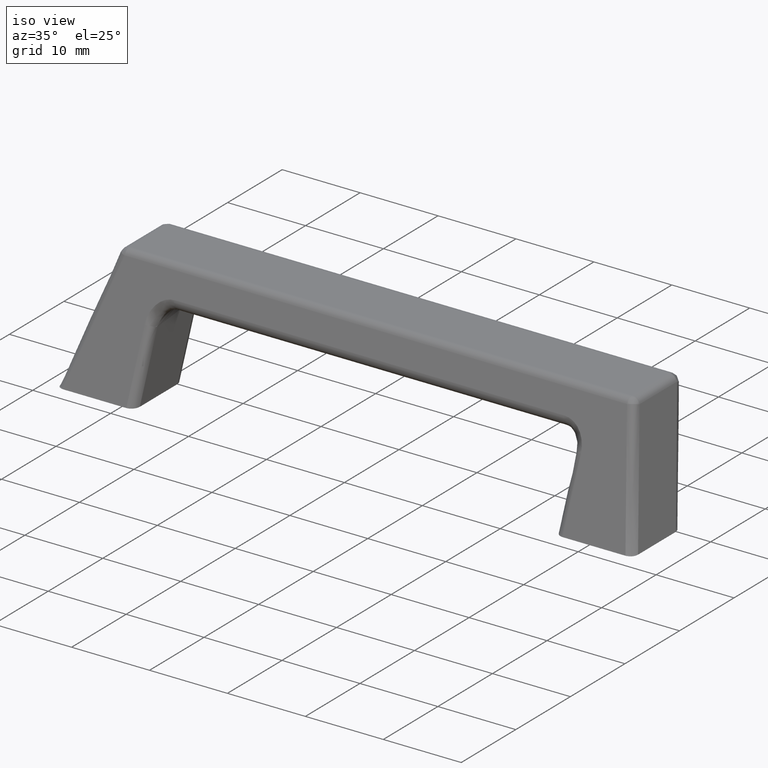
[diagram: clean part render]
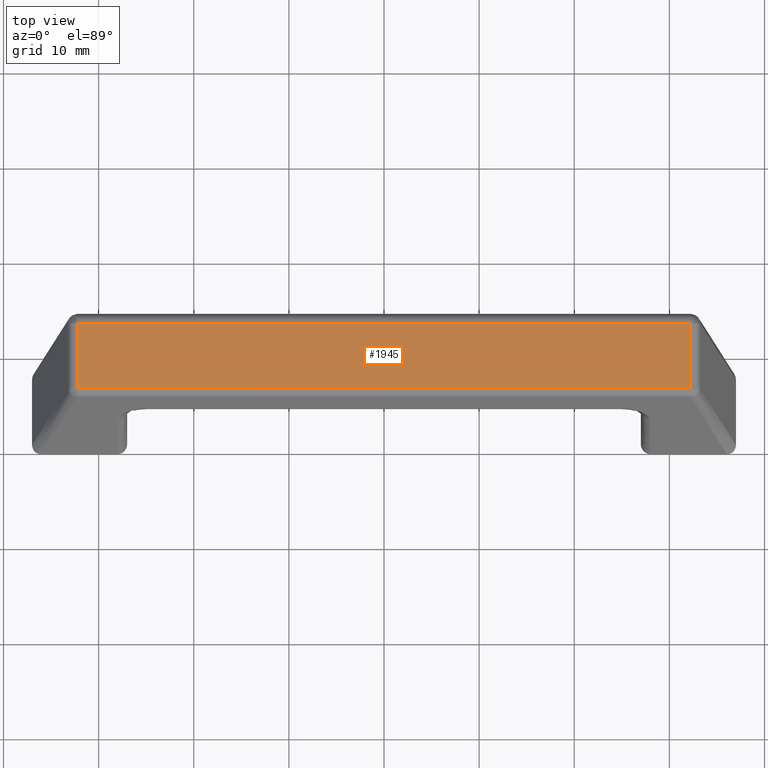
[diagram: tour spotlight — one face highlighted and labeled with its STEP entity id]
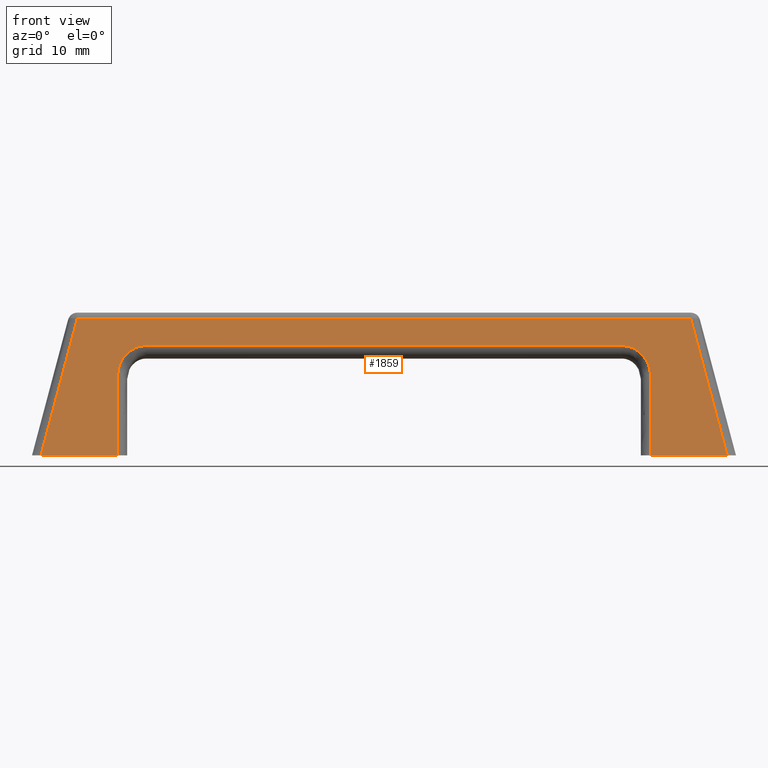
[diagram: tour spotlight — one face highlighted and labeled with its STEP entity id]
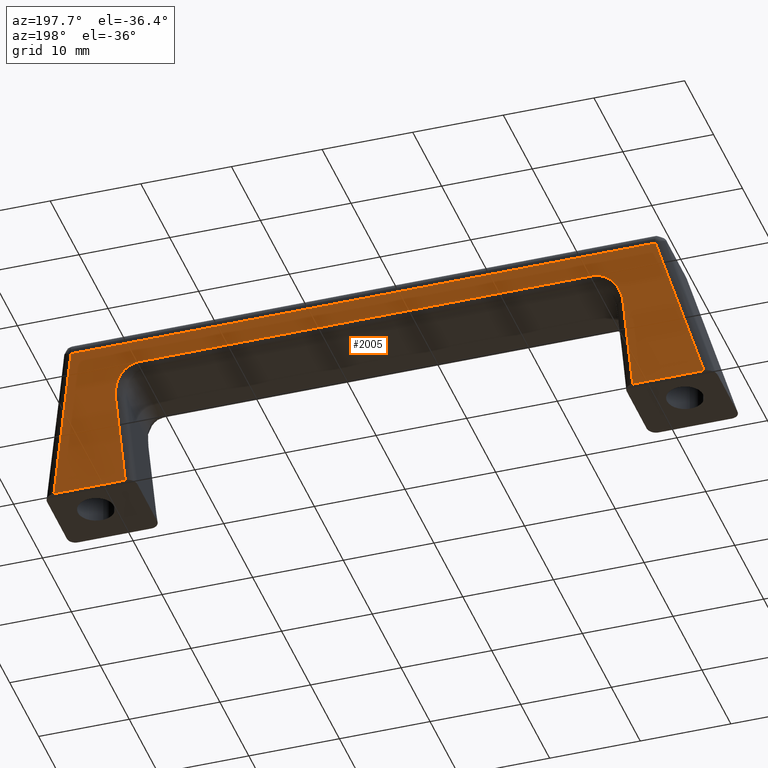
[diagram: tour spotlight — one face highlighted and labeled with its STEP entity id]
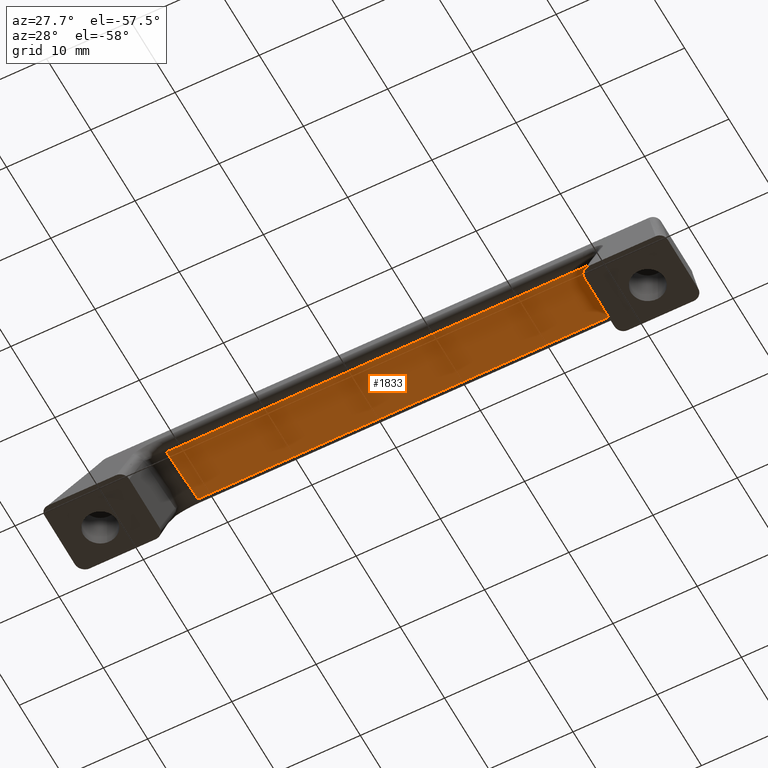
[diagram: tour spotlight — one face highlighted and labeled with its STEP entity id]
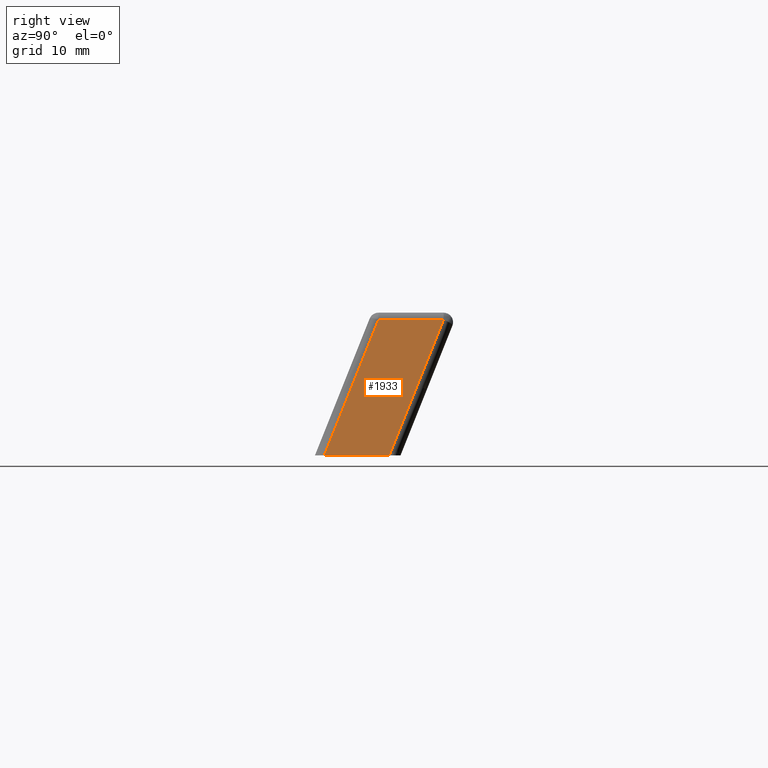
[diagram: tour spotlight — one face highlighted and labeled with its STEP entity id]
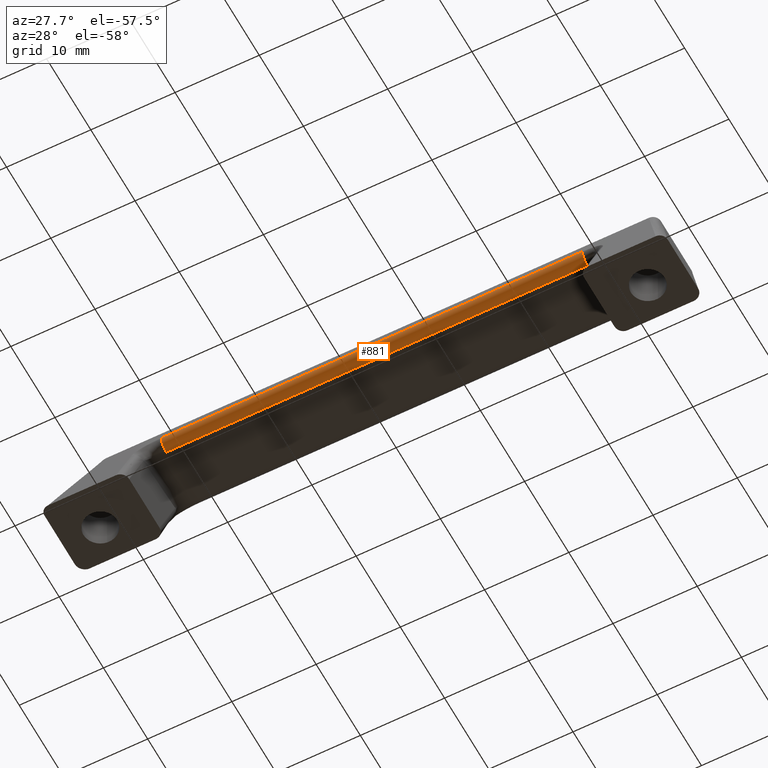
[diagram: tour spotlight — one face highlighted and labeled with its STEP entity id]
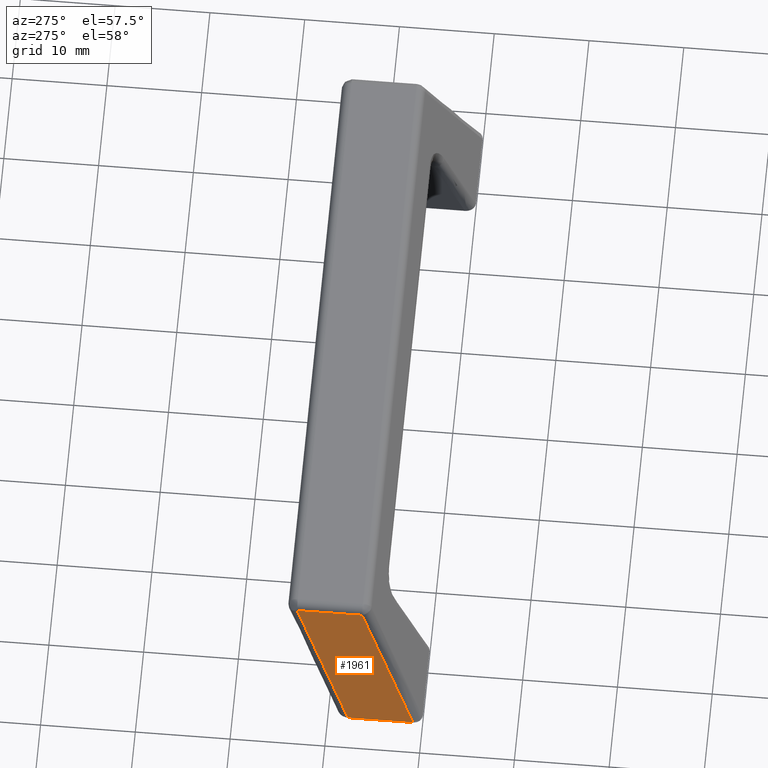
[diagram: tour spotlight — one face highlighted and labeled with its STEP entity id]
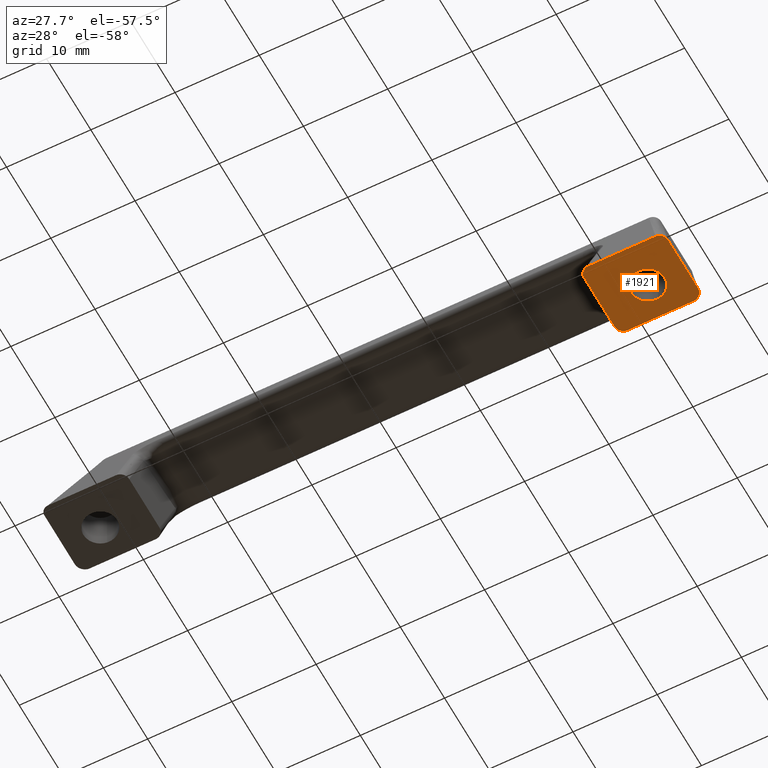
[diagram: tour spotlight — one face highlighted and labeled with its STEP entity id]
A machine part: a face-by-face anatomy tour. The part has 40 B-rep faces; the first image is the clean iso view, then the 8 largest visible faces are spotlighted one at a time (largest first), each with its STEP entity span.

Face 1 — top view, entity #1945. In plain terms, the highlighted face is a freeform B-spline surface patch.
Definition (entity closure, byte-faithful):
#509=CARTESIAN_POINT('',(-32.241546304475548,6.676632950862850,15.0));
#510=VERTEX_POINT('',#509);
#557=CARTESIAN_POINT('',(32.241546304475548,6.676632950862850,15.0));
#558=VERTEX_POINT('',#557);
#572=CARTESIAN_POINT('',(-32.241546304475548,6.676632950862850,15.0));
#573=CARTESIAN_POINT('',(32.241546304475548,6.676632950862850,15.0));
#574=QUASI_UNIFORM_CURVE('',1,(#572,#573),.UNSPECIFIED.,.F.,.U.);
#575=EDGE_CURVE('',#510,#558,#574,.T.);
#1462=CARTESIAN_POINT('',(-32.241546304475548,13.522367054996540,15.0));
#1463=VERTEX_POINT('',#1462);
#1509=CARTESIAN_POINT('',(32.241546304475548,13.522367054996540,15.0));
#1510=VERTEX_POINT('',#1509);
#1534=CARTESIAN_POINT('',(32.241546304475548,13.522367054996540,15.0));
#1535=CARTESIAN_POINT('',(-32.241546304475548,13.522367054996540,15.0));
#1536=QUASI_UNIFORM_CURVE('',1,(#1534,#1535),.UNSPECIFIED.,.F.,.U.);
#1537=EDGE_CURVE('',#1510,#1463,#1536,.T.);
#1720=CARTESIAN_POINT('',(-32.241546304475548,13.522367054996540,15.0));
#1721=CARTESIAN_POINT('',(-32.241546304475548,6.676632950862850,15.0));
#1722=QUASI_UNIFORM_CURVE('',1,(#1720,#1721),.UNSPECIFIED.,.F.,.U.);
#1723=EDGE_CURVE('',#1463,#510,#1722,.T.);
#1755=CARTESIAN_POINT('',(32.241546304475548,6.676632950862850,15.0));
#1756=CARTESIAN_POINT('',(32.241546304475548,13.522367054996540,15.0));
#1757=QUASI_UNIFORM_CURVE('',1,(#1755,#1756),.UNSPECIFIED.,.F.,.U.);
#1758=EDGE_CURVE('',#558,#1510,#1757,.T.);
#1934=CARTESIAN_POINT('',(35.462477260633037,6.334688456909107,15.0));
#1935=CARTESIAN_POINT('',(-35.462478413680600,6.334688456909107,15.0));
#1936=CARTESIAN_POINT('',(35.462477260633037,13.864312161006611,15.0));
#1937=CARTESIAN_POINT('',(-35.462478413680600,13.864312161006611,15.0));
#1938=B_SPLINE_SURFACE_WITH_KNOTS('',1,1,((#1934,#1936),(#1935,#1937)),.UNSPECIFIED.,.F.,.F.,.U.,(2,2),(2,2),(0.0,70.924955674313651),(0.0,7.529623704097500),.UNSPECIFIED.);
#1939=ORIENTED_EDGE('',*,*,#1758,.T.);
#1940=ORIENTED_EDGE('',*,*,#1537,.T.);
#1941=ORIENTED_EDGE('',*,*,#1723,.T.);
#1942=ORIENTED_EDGE('',*,*,#575,.T.);
#1943=EDGE_LOOP('',(#1939,#1940,#1941,#1942));
#1944=FACE_OUTER_BOUND('',#1943,.T.);
#1945=ADVANCED_FACE('',(#1944),#1938,.F.);

Face 2 — front view, entity #1859. In plain terms, the highlighted face is a freeform B-spline surface patch.
Definition (entity closure, byte-faithful):
#438=CARTESIAN_POINT('',(-36.064008025065903,0.0,0.0));
#439=VERTEX_POINT('',#438);
#455=CARTESIAN_POINT('',(-32.241546304475548,5.748147348757859,14.371368397529700));
#456=VERTEX_POINT('',#455);
#457=CARTESIAN_POINT('',(-32.241546304475548,5.748147348757859,14.371368397529700));
#458=CARTESIAN_POINT('',(-36.064008025065903,0.0,0.0));
#459=QUASI_UNIFORM_CURVE('',1,(#457,#458),.UNSPECIFIED.,.F.,.U.);
#460=EDGE_CURVE('',#456,#439,#459,.T.);
#555=CARTESIAN_POINT('',(32.241546304475548,5.748147348757859,14.371368397529700));
#556=VERTEX_POINT('',#555);
#578=CARTESIAN_POINT('',(32.241546304475548,5.748147348757859,14.371368397529700));
#579=CARTESIAN_POINT('',(-32.241546304475548,5.748147348757859,14.371368397529700));
#580=QUASI_UNIFORM_CURVE('',1,(#578,#579),.UNSPECIFIED.,.F.,.U.);
#581=EDGE_CURVE('',#556,#456,#580,.T.);
#658=CARTESIAN_POINT('',(36.064008025065853,0.0,0.0));
#659=VERTEX_POINT('',#658);
#679=CARTESIAN_POINT('',(36.064008025065853,0.0,0.0));
#680=CARTESIAN_POINT('',(32.241546304475548,5.748147348757859,14.371368397529700));
#681=QUASI_UNIFORM_CURVE('',1,(#679,#680),.UNSPECIFIED.,.F.,.U.);
#682=EDGE_CURVE('',#659,#556,#681,.T.);
#701=CARTESIAN_POINT('',(28.0,0.0,0.0));
#702=VERTEX_POINT('',#701);
#718=CARTESIAN_POINT('',(28.0,3.355913631270675,8.390367918404969));
#719=VERTEX_POINT('',#718);
#720=CARTESIAN_POINT('',(28.0,3.355913631270675,8.390367918404969));
#721=CARTESIAN_POINT('',(28.0,0.0,0.0));
#722=QUASI_UNIFORM_CURVE('',1,(#720,#721),.UNSPECIFIED.,.F.,.U.);
#723=EDGE_CURVE('',#719,#702,#722,.T.);
#786=CARTESIAN_POINT('',(25.0,4.616229143232919,11.541375959881959));
#787=VERTEX_POINT('',#786);
#819=CARTESIAN_POINT('',(25.0,4.616229143232919,11.541375959881959));
#820=CARTESIAN_POINT('',(27.999999922571295,4.616229169792095,11.541376026284484));
#821=CARTESIAN_POINT('',(28.0,3.355913631270675,8.390367918404969));
#829=(BOUNDED_CURVE()B_SPLINE_CURVE(2,(#819,#820,#821),.UNSPECIFIED.,.F.,.U.)CURVE()GEOMETRIC_REPRESENTATION_ITEM()QUASI_UNIFORM_CURVE()RATIONAL_B_SPLINE_CURVE((1.0,0.707106782861027,1.0))REPRESENTATION_ITEM(''));
#830=EDGE_CURVE('',#787,#719,#829,.T.);
#849=CARTESIAN_POINT('',(-25.0,4.616229143232919,11.541375959881959));
#850=VERTEX_POINT('',#849);
#874=CARTESIAN_POINT('',(-25.0,4.616229143232919,11.541375959881959));
#875=CARTESIAN_POINT('',(25.0,4.616229143232919,11.541375959881959));
#876=QUASI_UNIFORM_CURVE('',1,(#874,#875),.UNSPECIFIED.,.F.,.U.);
#877=EDGE_CURVE('',#850,#787,#876,.T.);
#920=CARTESIAN_POINT('',(-28.0,3.355913631270670,8.390367918404960));
#921=VERTEX_POINT('',#920);
#953=CARTESIAN_POINT('',(-28.0,3.355913631270670,8.390367918404960));
#954=CARTESIAN_POINT('',(-28.000000077428709,4.616229063555432,11.541375760674381));
#955=CARTESIAN_POINT('',(-25.0,4.616229143232919,11.541375959881959));
#963=(BOUNDED_CURVE()B_SPLINE_CURVE(2,(#953,#954,#955),.UNSPECIFIED.,.F.,.U.)CURVE()GEOMETRIC_REPRESENTATION_ITEM()QUASI_UNIFORM_CURVE()RATIONAL_B_SPLINE_CURVE((1.0,0.707106794413229,1.0))REPRESENTATION_ITEM(''));
#964=EDGE_CURVE('',#921,#850,#963,.T.);
#985=CARTESIAN_POINT('',(-28.0,0.0,0.0));
#986=VERTEX_POINT('',#985);
#1006=CARTESIAN_POINT('',(-28.0,0.0,0.0));
#1007=CARTESIAN_POINT('',(-28.0,3.355913631270670,8.390367918404960));
#1008=QUASI_UNIFORM_CURVE('',1,(#1006,#1007),.UNSPECIFIED.,.F.,.U.);
#1009=EDGE_CURVE('',#986,#921,#1008,.T.);
#1834=CARTESIAN_POINT('',(-39.666800675107538,-0.287119948929436,-0.717849823602104));
#1835=CARTESIAN_POINT('',(-39.666800675107538,6.035267451864608,15.089218606601950));
#1836=CARTESIAN_POINT('',(39.666798740483337,-0.287119948929436,-0.717849823602104));
#1837=CARTESIAN_POINT('',(39.666798740483337,6.035267451864608,15.089218606601950));
#1838=B_SPLINE_SURFACE_WITH_KNOTS('',1,1,((#1834,#1836),(#1835,#1837)),.UNSPECIFIED.,.F.,.F.,.U.,(2,2),(2,2),(0.0,17.024570326527272),(0.0,79.333599415590882),.UNSPECIFIED.);
#1839=ORIENTED_EDGE('',*,*,#830,.T.);
#1840=ORIENTED_EDGE('',*,*,#723,.T.);
#1841=CARTESIAN_POINT('',(36.064008025065853,0.0,0.0));
#1842=CARTESIAN_POINT('',(28.0,0.0,0.0));
#1843=QUASI_UNIFORM_CURVE('',1,(#1841,#1842),.UNSPECIFIED.,.F.,.U.);
#1844=EDGE_CURVE('',#659,#702,#1843,.T.);
#1845=ORIENTED_EDGE('',*,*,#1844,.F.);
#1846=ORIENTED_EDGE('',*,*,#682,.T.);
#1847=ORIENTED_EDGE('',*,*,#581,.T.);
#1848=ORIENTED_EDGE('',*,*,#460,.T.);
#1849=CARTESIAN_POINT('',(-28.0,0.0,0.0));
#1850=CARTESIAN_POINT('',(-36.064008025065903,0.0,0.0));
#1851=QUASI_UNIFORM_CURVE('',1,(#1849,#1850),.UNSPECIFIED.,.F.,.U.);
#1852=EDGE_CURVE('',#986,#439,#1851,.T.);
#1853=ORIENTED_EDGE('',*,*,#1852,.F.);
#1854=ORIENTED_EDGE('',*,*,#1009,.T.);
#1855=ORIENTED_EDGE('',*,*,#964,.T.);
#1856=ORIENTED_EDGE('',*,*,#877,.T.);
#1857=EDGE_LOOP('',(#1839,#1840,#1845,#1846,#1847,#1848,#1853,#1854,#1855,#1856));
#1858=FACE_OUTER_BOUND('',#1857,.T.);
#1859=ADVANCED_FACE('',(#1858),#1838,.F.);

Face 3 — auxiliary view, entity #2005. In plain terms, the highlighted face is a freeform B-spline surface patch.
Definition (entity closure, byte-faithful):
#1028=CARTESIAN_POINT('',(-28.0,9.0,0.0));
#1029=VERTEX_POINT('',#1028);
#1045=CARTESIAN_POINT('',(-28.0,12.362952093716981,8.408305647636791));
#1046=VERTEX_POINT('',#1045);
#1047=CARTESIAN_POINT('',(-28.0,12.362952093716981,8.408305647636791));
#1048=CARTESIAN_POINT('',(-28.0,9.0,0.0));
#1049=QUASI_UNIFORM_CURVE('',1,(#1047,#1048),.UNSPECIFIED.,.F.,.U.);
#1050=EDGE_CURVE('',#1046,#1029,#1049,.T.);
#1153=CARTESIAN_POINT('',(-25.0,13.623214323937241,11.559308020719200));
#1154=VERTEX_POINT('',#1153);
#1186=CARTESIAN_POINT('',(-25.0,13.623214323937241,11.559308020719200));
#1187=CARTESIAN_POINT('',(-27.999999999999996,13.623214323937241,11.559308020719198));
#1188=CARTESIAN_POINT('',(-28.0,12.362952093716981,8.408305647636791));
#1196=(BOUNDED_CURVE()B_SPLINE_CURVE(2,(#1186,#1187,#1188),.UNSPECIFIED.,.F.,.U.)CURVE()GEOMETRIC_REPRESENTATION_ITEM()QUASI_UNIFORM_CURVE()RATIONAL_B_SPLINE_CURVE((1.0,0.707106781186548,1.0))REPRESENTATION_ITEM(''));
#1197=EDGE_CURVE('',#1154,#1046,#1196,.T.);
#1216=CARTESIAN_POINT('',(25.0,13.623214323937241,11.559308020719200));
#1217=VERTEX_POINT('',#1216);
#1239=CARTESIAN_POINT('',(25.0,13.623214323937241,11.559308020719200));
#1240=CARTESIAN_POINT('',(-25.0,13.623214323937241,11.559308020719200));
#1241=QUASI_UNIFORM_CURVE('',1,(#1239,#1240),.UNSPECIFIED.,.F.,.U.);
#1242=EDGE_CURVE('',#1217,#1154,#1241,.T.);
#1325=CARTESIAN_POINT('',(28.0,12.362952093717000,8.408305647636810));
#1326=VERTEX_POINT('',#1325);
#1356=CARTESIAN_POINT('',(28.0,12.362952093717000,8.408305647636810));
#1357=CARTESIAN_POINT('',(28.0,13.623214323937180,11.559308020719206));
#1358=CARTESIAN_POINT('',(25.0,13.623214323937241,11.559308020719200));
#1366=(BOUNDED_CURVE()B_SPLINE_CURVE(2,(#1356,#1357,#1358),.UNSPECIFIED.,.F.,.U.)CURVE()GEOMETRIC_REPRESENTATION_ITEM()QUASI_UNIFORM_CURVE()RATIONAL_B_SPLINE_CURVE((1.0,0.707106781186537,1.0))REPRESENTATION_ITEM(''));
#1367=EDGE_CURVE('',#1326,#1217,#1366,.T.);
#1388=CARTESIAN_POINT('',(28.0,9.0,0.0));
#1389=VERTEX_POINT('',#1388);
#1411=CARTESIAN_POINT('',(28.0,9.0,0.0));
#1412=CARTESIAN_POINT('',(28.0,12.362952093717000,8.408305647636810));
#1413=QUASI_UNIFORM_CURVE('',1,(#1411,#1412),.UNSPECIFIED.,.F.,.U.);
#1414=EDGE_CURVE('',#1389,#1326,#1413,.T.);
#1443=CARTESIAN_POINT('',(-32.241546304475548,14.450857840270819,13.628644561557699));
#1444=VERTEX_POINT('',#1443);
#1511=CARTESIAN_POINT('',(32.241546304475548,14.450857840270819,13.628644561557699));
#1512=VERTEX_POINT('',#1511);
#1528=CARTESIAN_POINT('',(-32.241546304475548,14.450857840270819,13.628644561557699));
#1529=CARTESIAN_POINT('',(32.241546304475548,14.450857840270819,13.628644561557699));
#1530=QUASI_UNIFORM_CURVE('',1,(#1528,#1529),.UNSPECIFIED.,.F.,.U.);
#1531=EDGE_CURVE('',#1444,#1512,#1530,.T.);
#1558=CARTESIAN_POINT('',(-35.866460140032103,9.0,0.0));
#1559=VERTEX_POINT('',#1558);
#1581=CARTESIAN_POINT('',(-35.866460140032103,9.0,0.0));
#1582=CARTESIAN_POINT('',(-32.241546304475548,14.450857840270819,13.628644561557699));
#1583=QUASI_UNIFORM_CURVE('',1,(#1581,#1582),.UNSPECIFIED.,.F.,.U.);
#1584=EDGE_CURVE('',#1559,#1444,#1583,.T.);
#1669=CARTESIAN_POINT('',(35.866460140032103,9.0,0.0));
#1670=VERTEX_POINT('',#1669);
#1686=CARTESIAN_POINT('',(32.241546304475548,14.450857840270819,13.628644561557699));
#1687=CARTESIAN_POINT('',(35.866460140032103,9.0,0.0));
#1688=QUASI_UNIFORM_CURVE('',1,(#1686,#1687),.UNSPECIFIED.,.F.,.U.);
#1689=EDGE_CURVE('',#1512,#1670,#1688,.T.);
#1899=CARTESIAN_POINT('',(28.0,9.0,0.0));
#1900=CARTESIAN_POINT('',(35.866460140032103,9.0,0.0));
#1901=QUASI_UNIFORM_CURVE('',1,(#1899,#1900),.UNSPECIFIED.,.F.,.U.);
#1902=EDGE_CURVE('',#1389,#1670,#1901,.T.);
#1969=CARTESIAN_POINT('',(-35.866460140032103,9.0,0.0));
#1970=CARTESIAN_POINT('',(-28.0,9.0,0.0));
#1971=QUASI_UNIFORM_CURVE('',1,(#1969,#1970),.UNSPECIFIED.,.F.,.U.);
#1972=EDGE_CURVE('',#1559,#1029,#1971,.T.);
#1988=CARTESIAN_POINT('',(-39.449517765953942,14.723128383502550,14.309395842736400));
#1989=CARTESIAN_POINT('',(-39.449517765953942,8.727729505502836,-0.680751159329164));
#1990=CARTESIAN_POINT('',(39.449515841927088,14.723128383502550,14.309395842736400));
#1991=CARTESIAN_POINT('',(39.449515841927088,8.727729505502836,-0.680751159329164));
#1992=B_SPLINE_SURFACE_WITH_KNOTS('',1,1,((#1988,#1990),(#1989,#1991)),.UNSPECIFIED.,.F.,.F.,.U.,(2,2),(2,2),(0.0,16.144637340301440),(0.0,78.899033607881023),.UNSPECIFIED.);
#1993=ORIENTED_EDGE('',*,*,#1197,.T.);
#1994=ORIENTED_EDGE('',*,*,#1050,.T.);
#1995=ORIENTED_EDGE('',*,*,#1972,.F.);
#1996=ORIENTED_EDGE('',*,*,#1584,.T.);
#1997=ORIENTED_EDGE('',*,*,#1531,.T.);
#1998=ORIENTED_EDGE('',*,*,#1689,.T.);
#1999=ORIENTED_EDGE('',*,*,#1902,.F.);
#2000=ORIENTED_EDGE('',*,*,#1414,.T.);
#2001=ORIENTED_EDGE('',*,*,#1367,.T.);
#2002=ORIENTED_EDGE('',*,*,#1242,.T.);
#2003=EDGE_LOOP('',(#1993,#1994,#1995,#1996,#1997,#1998,#1999,#2000,#2001,#2002));
#2004=FACE_OUTER_BOUND('',#2003,.T.);
#2005=ADVANCED_FACE('',(#2004),#1992,.F.);

Face 4 — auxiliary view, entity #1833. In plain terms, the highlighted face is a freeform B-spline surface patch.
Definition (entity closure, byte-faithful):
#788=CARTESIAN_POINT('',(25.0,5.650503091472801,10.175618892956820));
#789=VERTEX_POINT('',#788);
#851=CARTESIAN_POINT('',(-25.0,5.650503091472801,10.175618892956820));
#852=VERTEX_POINT('',#851);
#868=CARTESIAN_POINT('',(25.0,5.650503091472801,10.175618892956820));
#869=CARTESIAN_POINT('',(-25.0,5.650503091472801,10.175618892956820));
#870=QUASI_UNIFORM_CURVE('',1,(#868,#869),.UNSPECIFIED.,.F.,.U.);
#871=EDGE_CURVE('',#789,#852,#870,.T.);
#1155=CARTESIAN_POINT('',(-25.0,12.800511884797841,10.936274789766060));
#1156=VERTEX_POINT('',#1155);
#1218=CARTESIAN_POINT('',(25.0,12.800511884797841,10.936274789766060));
#1219=VERTEX_POINT('',#1218);
#1233=CARTESIAN_POINT('',(-25.0,12.800511884797841,10.936274789766060));
#1234=CARTESIAN_POINT('',(25.0,12.800511884797841,10.936274789766060));
#1235=QUASI_UNIFORM_CURVE('',1,(#1233,#1234),.UNSPECIFIED.,.F.,.U.);
#1236=EDGE_CURVE('',#1156,#1219,#1235,.T.);
#1784=CARTESIAN_POINT('',(-25.0,5.650503091472801,10.175618892956820));
#1785=CARTESIAN_POINT('',(-25.0,12.800511884797841,10.936274789766060));
#1786=QUASI_UNIFORM_CURVE('',1,(#1784,#1785),.UNSPECIFIED.,.F.,.U.);
#1787=EDGE_CURVE('',#852,#1156,#1786,.T.);
#1807=CARTESIAN_POINT('',(25.0,12.800511884797841,10.936274789766060));
#1808=CARTESIAN_POINT('',(25.0,5.650503091472801,10.175618892956820));
#1809=QUASI_UNIFORM_CURVE('',1,(#1807,#1808),.UNSPECIFIED.,.F.,.U.);
#1810=EDGE_CURVE('',#1219,#789,#1809,.T.);
#1822=CARTESIAN_POINT('',(-27.497499903090301,13.157655254455641,10.974269597603250));
#1823=CARTESIAN_POINT('',(-27.497499903090301,5.293360488927725,10.137624166729170));
#1824=CARTESIAN_POINT('',(27.497501244194812,13.157655254455641,10.974269597603250));
#1825=CARTESIAN_POINT('',(27.497501244194812,5.293360488927725,10.137624166729170));
#1826=B_SPLINE_SURFACE_WITH_KNOTS('',1,1,((#1822,#1824),(#1823,#1825)),.UNSPECIFIED.,.F.,.F.,.U.,(2,2),(2,2),(0.0,7.908672944060348),(0.0,54.995001147285109),.UNSPECIFIED.);
#1827=ORIENTED_EDGE('',*,*,#1787,.T.);
#1828=ORIENTED_EDGE('',*,*,#1236,.T.);
#1829=ORIENTED_EDGE('',*,*,#1810,.T.);
#1830=ORIENTED_EDGE('',*,*,#871,.T.);
#1831=EDGE_LOOP('',(#1827,#1828,#1829,#1830));
#1832=FACE_OUTER_BOUND('',#1831,.T.);
#1833=ADVANCED_FACE('',(#1832),#1826,.F.);

Face 5 — right view, entity #1933. In plain terms, the highlighted face is a freeform B-spline surface patch.
Definition (entity closure, byte-faithful):
#610=CARTESIAN_POINT('',(33.207946837801749,6.676632950862850,14.257040870654500));
#611=VERTEX_POINT('',#610);
#656=CARTESIAN_POINT('',(37.0,0.974213430681936,0.0));
#657=VERTEX_POINT('',#656);
#673=CARTESIAN_POINT('',(33.207946837801749,6.676632950862850,14.257040870654500));
#674=CARTESIAN_POINT('',(37.0,0.974213430681936,0.0));
#675=QUASI_UNIFORM_CURVE('',1,(#673,#674),.UNSPECIFIED.,.F.,.U.);
#676=EDGE_CURVE('',#611,#657,#675,.T.);
#1613=CARTESIAN_POINT('',(33.207946837801749,13.522367054996421,14.257040870654500));
#1614=VERTEX_POINT('',#1613);
#1662=CARTESIAN_POINT('',(37.0,7.820178355463340,0.0));
#1663=VERTEX_POINT('',#1662);
#1664=CARTESIAN_POINT('',(37.0,7.820178355463340,0.0));
#1665=CARTESIAN_POINT('',(33.207946837801749,13.522367054996421,14.257040870654500));
#1666=QUASI_UNIFORM_CURVE('',1,(#1664,#1665),.UNSPECIFIED.,.F.,.U.);
#1667=EDGE_CURVE('',#1663,#1614,#1666,.T.);
#1749=CARTESIAN_POINT('',(33.207946837801749,13.522367054996421,14.257040870654500));
#1750=CARTESIAN_POINT('',(33.207946837801749,6.676632950862850,14.257040870654500));
#1751=QUASI_UNIFORM_CURVE('',1,(#1749,#1750),.UNSPECIFIED.,.F.,.U.);
#1752=EDGE_CURVE('',#1614,#611,#1751,.T.);
#1905=CARTESIAN_POINT('',(37.0,7.820178355463340,0.0));
#1906=CARTESIAN_POINT('',(37.0,0.974213430681936,0.0));
#1907=QUASI_UNIFORM_CURVE('',1,(#1905,#1906),.UNSPECIFIED.,.F.,.U.);
#1908=EDGE_CURVE('',#1663,#657,#1907,.T.);
#1922=CARTESIAN_POINT('',(37.189413048102033,0.347433181468184,-0.712139163856292));
#1923=CARTESIAN_POINT('',(33.018533687988871,0.347433181468184,14.969180416914410));
#1924=CARTESIAN_POINT('',(37.189413048102033,14.149147640777880,-0.712139163856292));
#1925=CARTESIAN_POINT('',(33.018533687988871,14.149147640777880,14.969180416914410));
#1926=B_SPLINE_SURFACE_WITH_KNOTS('',1,1,((#1922,#1924),(#1923,#1925)),.UNSPECIFIED.,.F.,.F.,.U.,(2,2),(2,2),(0.0,16.226522068233869),(0.0,13.801714459309700),.UNSPECIFIED.);
#1927=ORIENTED_EDGE('',*,*,#1908,.F.);
#1928=ORIENTED_EDGE('',*,*,#1667,.T.);
#1929=ORIENTED_EDGE('',*,*,#1752,.T.);
#1930=ORIENTED_EDGE('',*,*,#676,.T.);
#1931=EDGE_LOOP('',(#1927,#1928,#1929,#1930));
#1932=FACE_OUTER_BOUND('',#1931,.T.);
#1933=ADVANCED_FACE('',(#1932),#1926,.F.);

Face 6 — auxiliary view, entity #881. In plain terms, the highlighted face is a freeform B-spline surface patch.
Definition (entity closure, byte-faithful):
#786=CARTESIAN_POINT('',(25.0,4.616229143232919,11.541375959881959));
#787=VERTEX_POINT('',#786);
#788=CARTESIAN_POINT('',(25.0,5.650503091472801,10.175618892956820));
#789=VERTEX_POINT('',#788);
#790=CARTESIAN_POINT('',(25.0,4.616229143232922,11.541375959881959));
#791=CARTESIAN_POINT('',(25.0,4.406391398031059,11.016745090658572));
#792=CARTESIAN_POINT('',(25.0,4.747512898119033,10.566294704454700));
#793=CARTESIAN_POINT('',(25.0,5.088634398207008,10.115844318250824));
#794=CARTESIAN_POINT('',(25.0,5.650503091472801,10.175618892956820));
#802=(BOUNDED_CURVE()B_SPLINE_CURVE(2,(#790,#791,#792,#793,#794),.UNSPECIFIED.,.F.,.U.)B_SPLINE_CURVE_WITH_KNOTS((3,2,3),(0.0,0.500000000000000,1.0),.UNSPECIFIED.)CURVE()GEOMETRIC_REPRESENTATION_ITEM()RATIONAL_B_SPLINE_CURVE((1.0,0.870629243854323,1.0,0.870629243854323,1.0))REPRESENTATION_ITEM(''));
#803=EDGE_CURVE('',#787,#789,#802,.T.);
#835=CARTESIAN_POINT('',(26.250000000000000,4.619505256623628,11.549464281877810));
#836=CARTESIAN_POINT('',(-26.281250000000011,4.619505256623628,11.549464281877810));
#837=CARTESIAN_POINT('',(26.249999999999996,3.948817775439057,9.914162046804210));
#838=CARTESIAN_POINT('',(-26.281250000000011,3.948817775439057,9.914162046804210));
#839=CARTESIAN_POINT('',(26.250000000000000,5.695974967284805,10.181513583990951));
#840=CARTESIAN_POINT('',(-26.281250000000011,5.695974967284805,10.181513583990951));
#848=(BOUNDED_SURFACE()B_SPLINE_SURFACE(1,2,((#835,#837,#839),(#836,#838,#840)),.UNSPECIFIED.,.F.,.F.,.U.)B_SPLINE_SURFACE_WITH_KNOTS((2,2),(3,3),(0.0,52.531250000000007),(0.0,2.332731053587926),.UNSPECIFIED.)GEOMETRIC_REPRESENTATION_ITEM()RATIONAL_B_SPLINE_SURFACE(((1.0,0.492423560103467,1.0),(1.0,0.492423560103467,1.0)))REPRESENTATION_ITEM('')SURFACE());
#849=CARTESIAN_POINT('',(-25.0,4.616229143232919,11.541375959881959));
#850=VERTEX_POINT('',#849);
#851=CARTESIAN_POINT('',(-25.0,5.650503091472801,10.175618892956820));
#852=VERTEX_POINT('',#851);
#853=CARTESIAN_POINT('',(-25.0,4.616229143232922,11.541375959881959));
#854=CARTESIAN_POINT('',(-25.0,4.406391398031059,11.016745090658572));
#855=CARTESIAN_POINT('',(-25.0,4.747512898119033,10.566294704454700));
#856=CARTESIAN_POINT('',(-25.0,5.088634398207008,10.115844318250824));
#857=CARTESIAN_POINT('',(-25.0,5.650503091472801,10.175618892956820));
#865=(BOUNDED_CURVE()B_SPLINE_CURVE(2,(#853,#854,#855,#856,#857),.UNSPECIFIED.,.F.,.U.)B_SPLINE_CURVE_WITH_KNOTS((3,2,3),(0.0,0.500000000000000,1.0),.UNSPECIFIED.)CURVE()GEOMETRIC_REPRESENTATION_ITEM()RATIONAL_B_SPLINE_CURVE((1.0,0.870629243854323,1.0,0.870629243854323,1.0))REPRESENTATION_ITEM(''));
#866=EDGE_CURVE('',#850,#852,#865,.T.);
#867=ORIENTED_EDGE('',*,*,#866,.T.);
#868=CARTESIAN_POINT('',(25.0,5.650503091472801,10.175618892956820));
#869=CARTESIAN_POINT('',(-25.0,5.650503091472801,10.175618892956820));
#870=QUASI_UNIFORM_CURVE('',1,(#868,#869),.UNSPECIFIED.,.F.,.U.);
#871=EDGE_CURVE('',#789,#852,#870,.T.);
#872=ORIENTED_EDGE('',*,*,#871,.F.);
#873=ORIENTED_EDGE('',*,*,#803,.F.);
#874=CARTESIAN_POINT('',(-25.0,4.616229143232919,11.541375959881959));
#875=CARTESIAN_POINT('',(25.0,4.616229143232919,11.541375959881959));
#876=QUASI_UNIFORM_CURVE('',1,(#874,#875),.UNSPECIFIED.,.F.,.U.);
#877=EDGE_CURVE('',#850,#787,#876,.T.);
#878=ORIENTED_EDGE('',*,*,#877,.F.);
#879=EDGE_LOOP('',(#867,#872,#873,#878));
#880=FACE_OUTER_BOUND('',#879,.T.);
#881=ADVANCED_FACE('',(#880),#848,.T.);

Face 7 — auxiliary view, entity #1961. In plain terms, the highlighted face is a freeform B-spline surface patch.
Definition (entity closure, byte-faithful):
#440=CARTESIAN_POINT('',(-37.0,0.974213430681936,0.0));
#441=VERTEX_POINT('',#440);
#462=CARTESIAN_POINT('',(-33.207946837801749,6.676632950862850,14.257040870654500));
#463=VERTEX_POINT('',#462);
#477=CARTESIAN_POINT('',(-37.0,0.974213430681936,0.0));
#478=CARTESIAN_POINT('',(-33.207946837801749,6.676632950862850,14.257040870654500));
#479=QUASI_UNIFORM_CURVE('',1,(#477,#478),.UNSPECIFIED.,.F.,.U.);
#480=EDGE_CURVE('',#441,#463,#479,.T.);
#1445=CARTESIAN_POINT('',(-33.207946837801749,13.522367054996421,14.257040870654500));
#1446=VERTEX_POINT('',#1445);
#1556=CARTESIAN_POINT('',(-37.0,7.820178355463340,0.0));
#1557=VERTEX_POINT('',#1556);
#1575=CARTESIAN_POINT('',(-33.207946837801749,13.522367054996421,14.257040870654500));
#1576=CARTESIAN_POINT('',(-37.0,7.820178355463340,0.0));
#1577=QUASI_UNIFORM_CURVE('',1,(#1575,#1576),.UNSPECIFIED.,.F.,.U.);
#1578=EDGE_CURVE('',#1446,#1557,#1577,.T.);
#1726=CARTESIAN_POINT('',(-33.207946837801749,6.676632950862850,14.257040870654500));
#1727=CARTESIAN_POINT('',(-33.207946837801749,13.522367054996421,14.257040870654500));
#1728=QUASI_UNIFORM_CURVE('',1,(#1726,#1727),.UNSPECIFIED.,.F.,.U.);
#1729=EDGE_CURVE('',#463,#1446,#1728,.T.);
#1946=CARTESIAN_POINT('',(-33.018533754102592,0.347433181468185,14.969180168345680));
#1947=CARTESIAN_POINT('',(-37.189413151506344,0.347433181468185,-0.712139552626940));
#1948=CARTESIAN_POINT('',(-33.018533754102592,14.149147640777880,14.969180168345680));
#1949=CARTESIAN_POINT('',(-37.189413151506344,14.149147640777880,-0.712139552626940));
#1950=B_SPLINE_SURFACE_WITH_KNOTS('',1,1,((#1946,#1948),(#1947,#1949)),.UNSPECIFIED.,.F.,.F.,.U.,(2,2),(2,2),(0.0,16.226522213310279),(0.0,13.801714459309689),.UNSPECIFIED.);
#1951=ORIENTED_EDGE('',*,*,#1729,.T.);
#1952=ORIENTED_EDGE('',*,*,#1578,.T.);
#1953=CARTESIAN_POINT('',(-37.0,7.820178355463340,0.0));
#1954=CARTESIAN_POINT('',(-37.0,0.974213430681936,0.0));
#1955=QUASI_UNIFORM_CURVE('',1,(#1953,#1954),.UNSPECIFIED.,.F.,.U.);
#1956=EDGE_CURVE('',#1557,#441,#1955,.T.);
#1957=ORIENTED_EDGE('',*,*,#1956,.T.);
#1958=ORIENTED_EDGE('',*,*,#480,.T.);
#1959=EDGE_LOOP('',(#1951,#1952,#1957,#1958));
#1960=FACE_OUTER_BOUND('',#1959,.T.);
#1961=ADVANCED_FACE('',(#1960),#1950,.F.);

Face 8 — auxiliary view, entity #1921. In plain terms, the highlighted face is a freeform B-spline surface patch.
Definition (entity closure, byte-faithful):
#79=CARTESIAN_POINT('',(32.656918191783852,6.993834667440430,-1.318390E-016));
#80=VERTEX_POINT('',#79);
#86=CARTESIAN_POINT('',(34.500000000000000,5.0,0.0));
#87=VERTEX_POINT('',#86);
#88=CARTESIAN_POINT('',(34.500000000000000,5.0,0.0));
#89=CARTESIAN_POINT('',(34.499999999999993,6.848780982705975,0.0));
#90=CARTESIAN_POINT('',(32.656918191783845,6.993834667440430,-1.318390E-016));
#98=(BOUNDED_CURVE()B_SPLINE_CURVE(2,(#88,#89,#90),.UNSPECIFIED.,.F.,.U.)B_SPLINE_CURVE_WITH_KNOTS((3,3),(0.0,0.236331300576340),.UNSPECIFIED.)CURVE()GEOMETRIC_REPRESENTATION_ITEM()RATIONAL_B_SPLINE_CURVE((1.0,0.723120658671305,0.969723356054056))REPRESENTATION_ITEM(''));
#99=EDGE_CURVE('',#87,#80,#98,.T.);
#101=CARTESIAN_POINT('',(32.343081808216162,3.006165332559570,-1.318390E-016));
#102=VERTEX_POINT('',#101);
#103=CARTESIAN_POINT('',(32.343081808216169,3.006165332559570,-1.318390E-016));
#104=CARTESIAN_POINT('',(32.421419785654990,3.0,0.0));
#105=CARTESIAN_POINT('',(32.500000000000000,3.0,0.0));
#106=CARTESIAN_POINT('',(34.500000000000000,3.0,0.0));
#107=CARTESIAN_POINT('',(34.500000000000000,5.0,0.0));
#115=(BOUNDED_CURVE()B_SPLINE_CURVE(2,(#103,#104,#105,#106,#107),.UNSPECIFIED.,.F.,.U.)B_SPLINE_CURVE_WITH_KNOTS((3,2,3),(0.736331300576340,0.750000000000000,1.0),.UNSPECIFIED.)CURVE()GEOMETRIC_REPRESENTATION_ITEM()RATIONAL_B_SPLINE_CURVE((0.969723356054056,0.983986122515242,1.0,0.707106781186548,1.0))REPRESENTATION_ITEM(''));
#116=EDGE_CURVE('',#102,#87,#115,.T.);
#192=CARTESIAN_POINT('',(30.500000000000000,5.0,0.0));
#193=VERTEX_POINT('',#192);
#194=CARTESIAN_POINT('',(30.500000000000000,5.0,0.0));
#195=CARTESIAN_POINT('',(30.500000000000000,3.151219017294020,0.0));
#196=CARTESIAN_POINT('',(32.343081808216169,3.006165332559571,-1.318390E-016));
#204=(BOUNDED_CURVE()B_SPLINE_CURVE(2,(#194,#195,#196),.UNSPECIFIED.,.F.,.U.)B_SPLINE_CURVE_WITH_KNOTS((3,3),(0.500000000000000,0.736331300576340),.UNSPECIFIED.)CURVE()GEOMETRIC_REPRESENTATION_ITEM()RATIONAL_B_SPLINE_CURVE((1.0,0.723120658671305,0.969723356054057))REPRESENTATION_ITEM(''));
#205=EDGE_CURVE('',#193,#102,#204,.T.);
#207=CARTESIAN_POINT('',(32.656918191783852,6.993834667440430,-1.318390E-016));
#208=CARTESIAN_POINT('',(32.578580214345024,7.0,0.0));
#209=CARTESIAN_POINT('',(32.500000000000000,7.0,0.0));
#210=CARTESIAN_POINT('',(30.499999999999996,6.999999999999999,0.0));
#211=CARTESIAN_POINT('',(30.500000000000000,5.0,0.0));
#219=(BOUNDED_CURVE()B_SPLINE_CURVE(2,(#207,#208,#209,#210,#211),.UNSPECIFIED.,.F.,.U.)B_SPLINE_CURVE_WITH_KNOTS((3,2,3),(0.236331300576340,0.250000000000000,0.500000000000000),.UNSPECIFIED.)CURVE()GEOMETRIC_REPRESENTATION_ITEM()RATIONAL_B_SPLINE_CURVE((0.969723356054056,0.983986122515242,1.0,0.707106781186548,1.0))REPRESENTATION_ITEM(''));
#220=EDGE_CURVE('',#80,#193,#219,.T.);
#656=CARTESIAN_POINT('',(37.0,0.974213430681936,0.0));
#657=VERTEX_POINT('',#656);
#658=CARTESIAN_POINT('',(36.064008025065853,0.0,0.0));
#659=VERTEX_POINT('',#658);
#660=CARTESIAN_POINT('',(36.999999999999993,0.974213430681926,0.0));
#661=CARTESIAN_POINT('',(37.0,2.428613E-014,0.0));
#662=CARTESIAN_POINT('',(36.064008025065817,3.859760E-014,0.0));
#670=(BOUNDED_CURVE()B_SPLINE_CURVE(2,(#660,#661,#662),.UNSPECIFIED.,.F.,.U.)CURVE()GEOMETRIC_REPRESENTATION_ITEM()QUASI_UNIFORM_CURVE()RATIONAL_B_SPLINE_CURVE((1.0,0.740086770667657,1.0))REPRESENTATION_ITEM(''));
#671=EDGE_CURVE('',#657,#659,#670,.T.);
#701=CARTESIAN_POINT('',(28.0,0.0,0.0));
#702=VERTEX_POINT('',#701);
#703=CARTESIAN_POINT('',(27.0,1.077022624511036,0.0));
#704=VERTEX_POINT('',#703);
#705=CARTESIAN_POINT('',(28.0,0.0,0.0));
#706=CARTESIAN_POINT('',(26.999999999999996,0.000000632659729,0.0));
#707=CARTESIAN_POINT('',(27.0,1.077022624511064,0.0));
#715=(BOUNDED_CURVE()B_SPLINE_CURVE(2,(#705,#706,#707),.UNSPECIFIED.,.F.,.U.)CURVE()GEOMETRIC_REPRESENTATION_ITEM()QUASI_UNIFORM_CURVE()RATIONAL_B_SPLINE_CURVE((1.0,0.707106988869363,1.0))REPRESENTATION_ITEM(''));
#716=EDGE_CURVE('',#702,#704,#715,.T.);
#1386=CARTESIAN_POINT('',(27.0,7.922983387816390,0.0));
#1387=VERTEX_POINT('',#1386);
#1388=CARTESIAN_POINT('',(28.0,9.0,0.0));
#1389=VERTEX_POINT('',#1388);
#1390=CARTESIAN_POINT('',(27.0,7.922983387816410,0.0));
#1391=CARTESIAN_POINT('',(26.999999999999996,8.369098461558339,0.0));
#1392=CARTESIAN_POINT('',(27.292893427363211,8.684549362353604,0.0));
#1393=CARTESIAN_POINT('',(27.585786854726415,9.000000263148868,0.0));
#1394=CARTESIAN_POINT('',(28.0,9.0,0.0));
#1402=(BOUNDED_CURVE()B_SPLINE_CURVE(2,(#1390,#1391,#1392,#1393,#1394),.UNSPECIFIED.,.F.,.U.)B_SPLINE_CURVE_WITH_KNOTS((3,2,3),(0.0,0.500000000000000,1.0),.UNSPECIFIED.)CURVE()GEOMETRIC_REPRESENTATION_ITEM()RATIONAL_B_SPLINE_CURVE((1.0,0.923879476078128,1.0,0.923879476078128,1.0))REPRESENTATION_ITEM(''));
#1403=EDGE_CURVE('',#1387,#1389,#1402,.T.);
#1662=CARTESIAN_POINT('',(37.0,7.820178355463340,0.0));
#1663=VERTEX_POINT('',#1662);
#1669=CARTESIAN_POINT('',(35.866460140032103,9.0,0.0));
#1670=VERTEX_POINT('',#1669);
#1671=CARTESIAN_POINT('',(35.866460140032132,9.000000000000025,0.0));
#1672=CARTESIAN_POINT('',(36.322253333280976,9.000000000000002,0.0));
#1673=CARTESIAN_POINT('',(36.661126666640492,8.647290662134124,0.0));
#1674=CARTESIAN_POINT('',(36.999999999999986,8.294581324268245,0.0));
#1675=CARTESIAN_POINT('',(36.999999999999993,7.820178355463329,0.0));
#1683=(BOUNDED_CURVE()B_SPLINE_CURVE(2,(#1671,#1672,#1673,#1674,#1675),.UNSPECIFIED.,.F.,.U.)B_SPLINE_CURVE_WITH_KNOTS((3,2,3),(0.0,0.500000000000000,1.0),.UNSPECIFIED.)CURVE()GEOMETRIC_REPRESENTATION_ITEM()RATIONAL_B_SPLINE_CURVE((1.0,0.914470510708611,1.0,0.914470510708611,1.0))REPRESENTATION_ITEM(''));
#1684=EDGE_CURVE('',#1670,#1663,#1683,.T.);
#1841=CARTESIAN_POINT('',(36.064008025065853,0.0,0.0));
#1842=CARTESIAN_POINT('',(28.0,0.0,0.0));
#1843=QUASI_UNIFORM_CURVE('',1,(#1841,#1842),.UNSPECIFIED.,.F.,.U.);
#1844=EDGE_CURVE('',#659,#702,#1843,.T.);
#1883=CARTESIAN_POINT('',(27.0,7.922983387816390,0.0));
#1884=CARTESIAN_POINT('',(27.0,1.077022624511036,0.0));
#1885=QUASI_UNIFORM_CURVE('',1,(#1883,#1884),.UNSPECIFIED.,.F.,.U.);
#1886=EDGE_CURVE('',#1387,#704,#1885,.T.);
#1892=CARTESIAN_POINT('',(26.500500019381938,-0.449549982556254,0.0));
#1893=CARTESIAN_POINT('',(37.499500248838963,-0.449549982556254,0.0));
#1894=CARTESIAN_POINT('',(26.500500019381938,9.449550223955065,0.0));
#1895=CARTESIAN_POINT('',(37.499500248838963,9.449550223955065,0.0));
#1896=B_SPLINE_SURFACE_WITH_KNOTS('',1,1,((#1892,#1894),(#1893,#1895)),.UNSPECIFIED.,.F.,.F.,.U.,(2,2),(2,2),(0.0,10.999000229457030),(0.0,9.899100206511319),.UNSPECIFIED.);
#1897=ORIENTED_EDGE('',*,*,#1886,.F.);
#1898=ORIENTED_EDGE('',*,*,#1403,.T.);
#1899=CARTESIAN_POINT('',(28.0,9.0,0.0));
#1900=CARTESIAN_POINT('',(35.866460140032103,9.0,0.0));
#1901=QUASI_UNIFORM_CURVE('',1,(#1899,#1900),.UNSPECIFIED.,.F.,.U.);
#1902=EDGE_CURVE('',#1389,#1670,#1901,.T.);
#1903=ORIENTED_EDGE('',*,*,#1902,.T.);
#1904=ORIENTED_EDGE('',*,*,#1684,.T.);
#1905=CARTESIAN_POINT('',(37.0,7.820178355463340,0.0));
#1906=CARTESIAN_POINT('',(37.0,0.974213430681936,0.0));
#1907=QUASI_UNIFORM_CURVE('',1,(#1905,#1906),.UNSPECIFIED.,.F.,.U.);
#1908=EDGE_CURVE('',#1663,#657,#1907,.T.);
#1909=ORIENTED_EDGE('',*,*,#1908,.T.);
#1910=ORIENTED_EDGE('',*,*,#671,.T.);
#1911=ORIENTED_EDGE('',*,*,#1844,.T.);
#1912=ORIENTED_EDGE('',*,*,#716,.T.);
#1913=EDGE_LOOP('',(#1897,#1898,#1903,#1904,#1909,#1910,#1911,#1912));
#1914=FACE_OUTER_BOUND('',#1913,.T.);
#1915=ORIENTED_EDGE('',*,*,#205,.T.);
#1916=ORIENTED_EDGE('',*,*,#116,.T.);
#1917=ORIENTED_EDGE('',*,*,#99,.T.);
#1918=ORIENTED_EDGE('',*,*,#220,.T.);
#1919=EDGE_LOOP('',(#1915,#1916,#1917,#1918));
#1920=FACE_BOUND('',#1919,.T.);
#1921=ADVANCED_FACE('',(#1914,#1920),#1896,.F.);